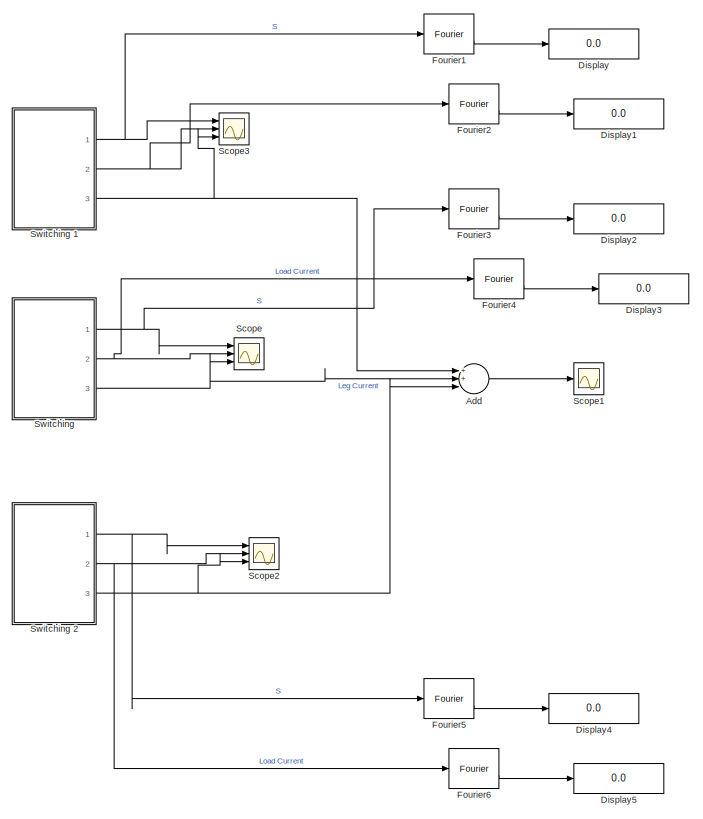
[diagram: root canvas - part 1/2, left side, full height]
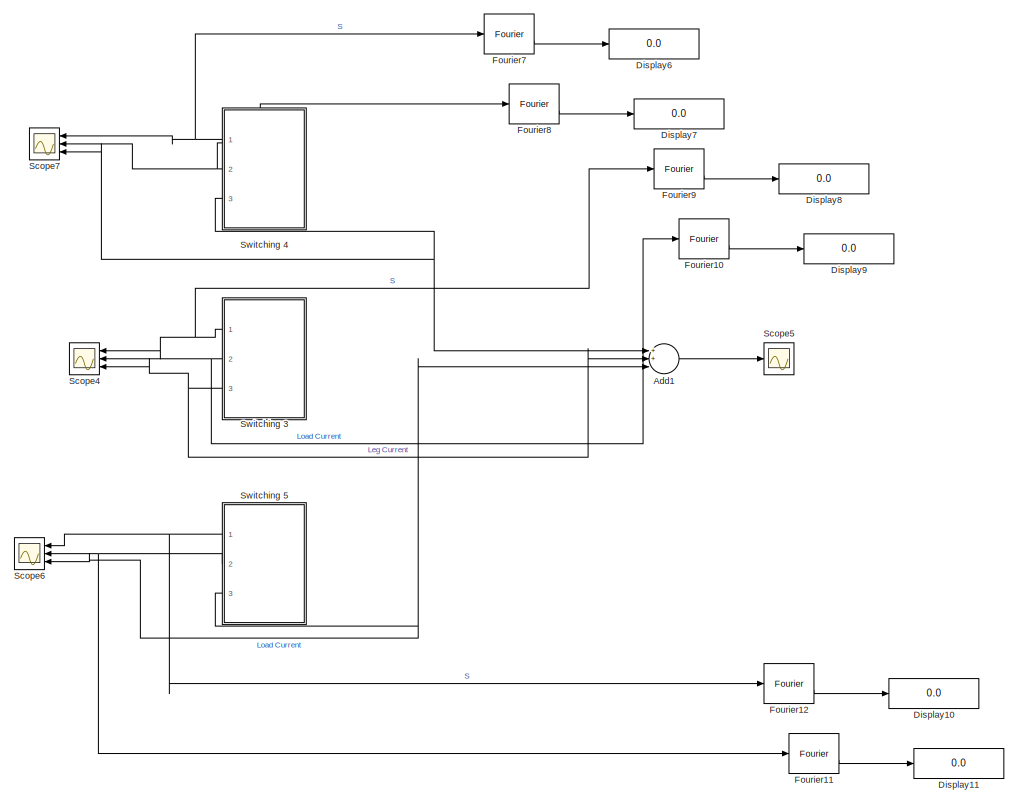
[diagram: root canvas - part 2/2, right side, full height]
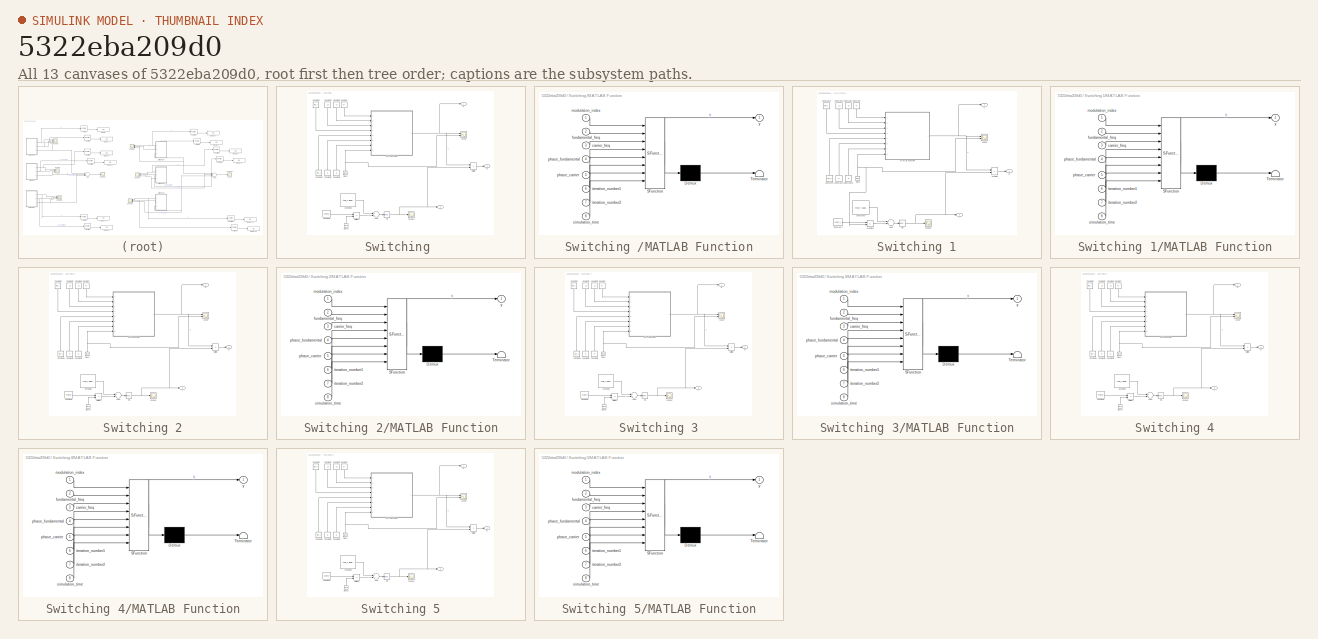
[diagram: thumbnail index - all 13 canvases of the model, root first then tree order]
MODEL slx_5322eba209d0
KIND model
CONFIG AbsTol = auto
CONFIG EnableMultiTasking = off
CONFIG FixedStep = 2.5e-6
CONFIG MaxStep = auto
CONFIG MinStep = auto
CONFIG RelTol = 1e-3
CONFIG SampleTimeConstraint = Unconstrained
CONFIG Solver = FixedStepAuto
CONFIG SolverName = FixedStepAuto
CONFIG StartTime = 0.0
CONFIG StopTime = 0.04
BLOCK [Sum] Add
  InputSameDT = off
  Inputs = 3
  OutDataTypeStr = Inherit: Inherit via internal rule
  Ports = [3, 1]
  SaturateOnIntegerOverflow = off
BLOCK [Sum] Add1
  InputSameDT = off
  Inputs = 3
  OutDataTypeStr = Inherit: Inherit via internal rule
  Ports = [3, 1]
  SaturateOnIntegerOverflow = off
BLOCK [Display] Display
  Decimation = 1
  Ports = [1]
BLOCK [Display] Display1
  Decimation = 1
  Ports = [1]
BLOCK [Display] Display10
  Decimation = 1
  Ports = [1]
BLOCK [Display] Display11
  Decimation = 1
  Ports = [1]
BLOCK [Display] Display2
  Decimation = 1
  Ports = [1]
BLOCK [Display] Display3
  Decimation = 1
  Ports = [1]
BLOCK [Display] Display4
  Decimation = 1
  Ports = [1]
BLOCK [Display] Display5
  Decimation = 1
  Ports = [1]
BLOCK [Display] Display6
  Decimation = 1
  Ports = [1]
BLOCK [Display] Display7
  Decimation = 1
  Ports = [1]
BLOCK [Display] Display8
  Decimation = 1
  Ports = [1]
BLOCK [Display] Display9
  Decimation = 1
  Ports = [1]
BLOCK [Reference] Fourier1  REF=powerlib_meascontrol/Measurements/Fourier
  Ports = [1, 2]
  SourceBlock = powerlib_meascontrol/Measurements/Fourier
  SourceProductBaseCode = PS
  SourceProductName = Simscape Power Systems
  SourceType = Fourier
BLOCK [Reference] Fourier10  REF=powerlib_meascontrol/Measurements/Fourier
  Ports = [1, 2]
  SourceBlock = powerlib_meascontrol/Measurements/Fourier
  SourceProductBaseCode = PS
  SourceProductName = Simscape Power Systems
  SourceType = Fourier
BLOCK [Reference] Fourier11  REF=powerlib_meascontrol/Measurements/Fourier
  Ports = [1, 2]
  SourceBlock = powerlib_meascontrol/Measurements/Fourier
  SourceProductBaseCode = PS
  SourceProductName = Simscape Power Systems
  SourceType = Fourier
BLOCK [Reference] Fourier12  REF=powerlib_meascontrol/Measurements/Fourier
  Ports = [1, 2]
  SourceBlock = powerlib_meascontrol/Measurements/Fourier
  SourceProductBaseCode = PS
  SourceProductName = Simscape Power Systems
  SourceType = Fourier
BLOCK [Reference] Fourier2  REF=powerlib_meascontrol/Measurements/Fourier
  Ports = [1, 2]
  SourceBlock = powerlib_meascontrol/Measurements/Fourier
  SourceProductBaseCode = PS
  SourceProductName = Simscape Power Systems
  SourceType = Fourier
BLOCK [Reference] Fourier3  REF=powerlib_meascontrol/Measurements/Fourier
  Ports = [1, 2]
  SourceBlock = powerlib_meascontrol/Measurements/Fourier
  SourceProductBaseCode = PS
  SourceProductName = Simscape Power Systems
  SourceType = Fourier
BLOCK [Reference] Fourier4  REF=powerlib_meascontrol/Measurements/Fourier
  Ports = [1, 2]
  SourceBlock = powerlib_meascontrol/Measurements/Fourier
  SourceProductBaseCode = PS
  SourceProductName = Simscape Power Systems
  SourceType = Fourier
BLOCK [Reference] Fourier5  REF=powerlib_meascontrol/Measurements/Fourier
  Ports = [1, 2]
  SourceBlock = powerlib_meascontrol/Measurements/Fourier
  SourceProductBaseCode = PS
  SourceProductName = Simscape Power Systems
  SourceType = Fourier
BLOCK [Reference] Fourier6  REF=powerlib_meascontrol/Measurements/Fourier
  Ports = [1, 2]
  SourceBlock = powerlib_meascontrol/Measurements/Fourier
  SourceProductBaseCode = PS
  SourceProductName = Simscape Power Systems
  SourceType = Fourier
BLOCK [Reference] Fourier7  REF=powerlib_meascontrol/Measurements/Fourier
  Ports = [1, 2]
  SourceBlock = powerlib_meascontrol/Measurements/Fourier
  SourceProductBaseCode = PS
  SourceProductName = Simscape Power Systems
  SourceType = Fourier
BLOCK [Reference] Fourier8  REF=powerlib_meascontrol/Measurements/Fourier
  Ports = [1, 2]
  SourceBlock = powerlib_meascontrol/Measurements/Fourier
  SourceProductBaseCode = PS
  SourceProductName = Simscape Power Systems
  SourceType = Fourier
BLOCK [Reference] Fourier9  REF=powerlib_meascontrol/Measurements/Fourier
  Ports = [1, 2]
  SourceBlock = powerlib_meascontrol/Measurements/Fourier
  SourceProductBaseCode = PS
  SourceProductName = Simscape Power Systems
  SourceType = Fourier
BLOCK [Scope] Scope
  Floating = off
  NumInputPorts = 3
  Ports = [3]
  ScopeSpecificationString = Simulink.scopes.TimeScopeBlockCfg('CurrentConfiguration', extmgr.ConfigurationSet(extmgr.Configuration('Core','General UI',true),extmgr.Configuration('Core','Source UI',true),extmgr.Configuration('Sources','WiredSimulink',true,'DataLoggingVariableName','ScopeData2'),extmgr.Configuration('Visuals','Time Domain',true,'SerializedDisplays',{struct('MinYLimReal','-0.25175','MaxYLimReal','1.25195','YLab...<+2741ch>
BLOCK [Scope] Scope1
  Floating = off
  NumInputPorts = 1
  Ports = [1]
  ScopeSpecificationString = Simulink.scopes.TimeScopeBlockCfg('CurrentConfiguration', extmgr.ConfigurationSet(extmgr.Configuration('Core','General UI',true),extmgr.Configuration('Core','Source UI',true),extmgr.Configuration('Sources','WiredSimulink',true,'DataLoggingVariableName','Module1','DataLogging',true),extmgr.Configuration('Visuals','Time Domain',true,'SerializedDisplays',{struct('MinYLimReal','-0.22263','MaxYLimReal'...<+1454ch>
BLOCK [Scope] Scope2
  Floating = off
  NumInputPorts = 3
  Ports = [3]
  ScopeSpecificationString = Simulink.scopes.TimeScopeBlockCfg('CurrentConfiguration', extmgr.ConfigurationSet(extmgr.Configuration('Core','General UI',true),extmgr.Configuration('Core','Source UI',true),extmgr.Configuration('Sources','WiredSimulink',true,'DataLoggingVariableName','ScopeData4'),extmgr.Configuration('Visuals','Time Domain',true,'SerializedDisplays',{struct('MinYLimReal','-0.25652','MaxYLimReal','1.34172','YLab...<+2760ch>
BLOCK [Scope] Scope3
  Floating = off
  NumInputPorts = 3
  Ports = [3]
  ScopeSpecificationString = Simulink.scopes.TimeScopeBlockCfg('CurrentConfiguration', extmgr.ConfigurationSet(extmgr.Configuration('Core','General UI',true),extmgr.Configuration('Core','Source UI',true),extmgr.Configuration('Sources','WiredSimulink',true,'DataLoggingVariableName','ScopeData5'),extmgr.Configuration('Visuals','Time Domain',true,'SerializedDisplays',{struct('MinYLimReal','-0.25187','MaxYLimReal','1.25118','YLab...<+2750ch>
BLOCK [Scope] Scope4
  Floating = off
  NumInputPorts = 3
  Ports = [3]
  ScopeSpecificationString = Simulink.scopes.TimeScopeBlockCfg('CurrentConfiguration', extmgr.ConfigurationSet(extmgr.Configuration('Core','General UI',true),extmgr.Configuration('Core','Source UI',true),extmgr.Configuration('Sources','WiredSimulink',true,'DataLoggingVariableName','ScopeData6'),extmgr.Configuration('Visuals','Time Domain',true,'SerializedDisplays',{struct('MinYLimReal','-0.25175','MaxYLimReal','1.25195','YLab...<+2758ch>
BLOCK [Scope] Scope5
  Floating = off
  NumInputPorts = 1
  Ports = [1]
  ScopeSpecificationString = Simulink.scopes.TimeScopeBlockCfg('CurrentConfiguration', extmgr.ConfigurationSet(extmgr.Configuration('Core','General UI',true),extmgr.Configuration('Core','Source UI',true),extmgr.Configuration('Sources','WiredSimulink',true,'DataLoggingVariableName','Module2','DataLogging',true),extmgr.Configuration('Visuals','Time Domain',true,'SerializedDisplays',{struct('MinYLimReal','-0.49524','MaxYLimReal'...<+1455ch>
BLOCK [Scope] Scope6
  Floating = off
  NumInputPorts = 3
  Ports = [3]
  ScopeSpecificationString = Simulink.scopes.TimeScopeBlockCfg('CurrentConfiguration', extmgr.ConfigurationSet(extmgr.Configuration('Core','General UI',true),extmgr.Configuration('Core','Source UI',true),extmgr.Configuration('Sources','WiredSimulink',true,'DataLoggingVariableName','ScopeData8'),extmgr.Configuration('Visuals','Time Domain',true,'SerializedDisplays',{struct('MinYLimReal','-0.25652','MaxYLimReal','1.34172','YLab...<+2760ch>
BLOCK [Scope] Scope7
  Floating = off
  NumInputPorts = 3
  Ports = [3]
  ScopeSpecificationString = Simulink.scopes.TimeScopeBlockCfg('CurrentConfiguration', extmgr.ConfigurationSet(extmgr.Configuration('Core','General UI',true),extmgr.Configuration('Core','Source UI',true),extmgr.Configuration('Sources','WiredSimulink',true,'DataLoggingVariableName','ScopeData9'),extmgr.Configuration('Visuals','Time Domain',true,'SerializedDisplays',{struct('MinYLimReal','-0.25187','MaxYLimReal','1.25118','YLab...<+2755ch>
BLOCK [SubSystem] Switching 
  Ports = [0, 3]
  RequestExecContextInheritance = off
BLOCK [Sum] Switching /Add2
  InputSameDT = off
  OutDataTypeStr = Inherit: Inherit via internal rule
  Ports = [2, 1]
  SaturateOnIntegerOverflow = off
BLOCK [Clock] Switching /Clock
  Decimation = 1
  DisplayTime = on
BLOCK [Clock] Switching /Clock2
BLOCK [Constant] Switching /Constant
  Value = m
BLOCK [Constant] Switching /Constant1
  Value = f_f
BLOCK [Constant] Switching /Constant2
  Value = f_s
BLOCK [Constant] Switching /Constant3
  Value = the_f
BLOCK [Constant] Switching /Constant4
  Value = the_c
BLOCK [Constant] Switching /Constant5
  Value = i1
BLOCK [Constant] Switching /Constant6
  Value = i2
BLOCK [Constant] Switching /Constant7
  Value = 2*pi*f_f
BLOCK [Constant] Switching /Constant8
  Value = -the_f-load_phase
  VectorParams1D = off
BLOCK [Outport] Switching /I 
  IconDisplay = Port number
  Port = 2
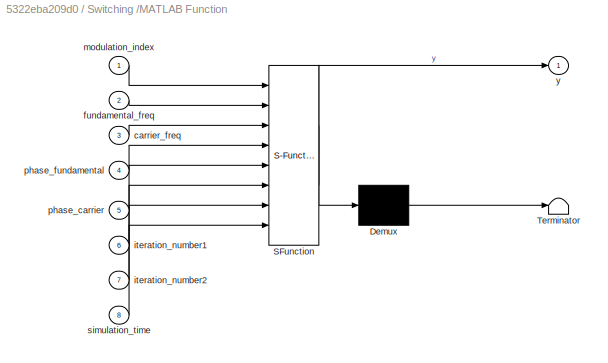
BLOCK [SubSystem] Switching /MATLAB Function
  ErrorFcn = Stateflow.Translate.translate
  PermitHierarchicalResolution = ExplicitOnly
  Ports = [8, 1]
  RequestExecContextInheritance = off
  SFBlockType = MATLAB Function
  TreatAsAtomicUnit = on
BLOCK [Demux] Switching /MATLAB Function/ Demux 
  Outputs = 1
  Ports = [1, 1]
BLOCK [S-Function] Switching /MATLAB Function/ SFunction 
  EnableBusSupport = on
  FunctionName = sf_sfun
  PortCounts = [8 2]
  Ports = [8, 2]
  SFcnIsStateOwnerBlock = off
  SFunctionDeploymentMode = off
  Tag = Stateflow S-Function switching_leg 4
BLOCK [Terminator] Switching /MATLAB Function/ Terminator 
BLOCK [Inport] Switching /MATLAB Function/carrier_freq
  IconDisplay = Port number
  Port = 3
BLOCK [Inport] Switching /MATLAB Function/fundamental_freq
  IconDisplay = Port number
  Port = 2
BLOCK [Inport] Switching /MATLAB Function/iteration_number1
  IconDisplay = Port number
  Port = 6
BLOCK [Inport] Switching /MATLAB Function/iteration_number2
  IconDisplay = Port number
  Port = 7
BLOCK [Inport] Switching /MATLAB Function/modulation_index
  IconDisplay = Port number
BLOCK [Inport] Switching /MATLAB Function/phase_carrier
  IconDisplay = Port number
  Port = 5
BLOCK [Inport] Switching /MATLAB Function/phase_fundamental
  IconDisplay = Port number
  Port = 4
BLOCK [Inport] Switching /MATLAB Function/simulation_time
  IconDisplay = Port number
  Port = 8
BLOCK [Outport] Switching /MATLAB Function/y
  IconDisplay = Port number
BLOCK [Product] Switching /Multiply
  InputSameDT = off
  OutDataTypeStr = Inherit: Inherit via internal rule
  Ports = [2, 1]
  RndMeth = Floor
  SaturateOnIntegerOverflow = off
BLOCK [Product] Switching /Multiply2
  InputSameDT = off
  OutDataTypeStr = Inherit: Inherit via internal rule
  Ports = [2, 1]
  RndMeth = Floor
  SaturateOnIntegerOverflow = off
BLOCK [Outport] Switching /S
  IconDisplay = Port number
BLOCK [Outport] Switching /SI
  IconDisplay = Port number
  Port = 3
BLOCK [Scope] Switching /Scope
  Floating = off
  NumInputPorts = 2
  Ports = [2]
  ScopeSpecificationString = Simulink.scopes.TimeScopeBlockCfg('CurrentConfiguration', extmgr.ConfigurationSet(extmgr.Configuration('Core','General UI',true),extmgr.Configuration('Core','Source UI',true),extmgr.Configuration('Sources','WiredSimulink',true),extmgr.Configuration('Visuals','Time Domain',true,'SerializedDisplays',{struct('MinYLimReal','-0.23876','MaxYLimReal','1.24537','YLabelReal','','MinYLimMag','0.00000','MaxY...<+1421ch>  <repeated x5 — deduplicated; at blocks: Scope>
BLOCK [Scope] Switching /Scope2
  Floating = off
  NumInputPorts = 1
  Ports = [1]
  ScopeSpecificationString = Simulink.scopes.TimeScopeBlockCfg('CurrentConfiguration', extmgr.ConfigurationSet(extmgr.Configuration('Core','General UI',true),extmgr.Configuration('Core','Source UI',true),extmgr.Configuration('Sources','WiredSimulink',true,'DataLoggingVariableName','ScopeData1'),extmgr.Configuration('Visuals','Time Domain',true,'SerializedDisplays',{struct('MinYLimReal','-1.25','MaxYLimReal','1.25','YLabelReal...<+1376ch>  <repeated x6 — deduplicated; at blocks: Scope2>
BLOCK [Trigonometry] Switching /Sin
  Ports = [1, 1]
BLOCK [SubSystem] Switching 1
  Ports = [0, 3]
  RequestExecContextInheritance = off
BLOCK [Sum] Switching 1/Add2
  InputSameDT = off
  OutDataTypeStr = Inherit: Inherit via internal rule
  Ports = [2, 1]
  SaturateOnIntegerOverflow = off
BLOCK [Clock] Switching 1/Clock
  Decimation = 1
  DisplayTime = on
BLOCK [Constant] Switching 1/Constant
  Value = m
BLOCK [Constant] Switching 1/Constant1
  Value = f_f
BLOCK [Constant] Switching 1/Constant2
  Value = f_s
BLOCK [Constant] Switching 1/Constant3
  Value = the_f
BLOCK [Constant] Switching 1/Constant4
  Value = the_c
BLOCK [Constant] Switching 1/Constant5
  Value = i1
BLOCK [Constant] Switching 1/Constant6
  Value = i2
BLOCK [Constant] Switching 1/Constant7
  Value = 2*pi*f_f
BLOCK [Constant] Switching 1/Constant8
  Value = -the_f-load_phase
  VectorParams1D = off
BLOCK [Outport] Switching 1/I 
  IconDisplay = Port number
  Port = 2
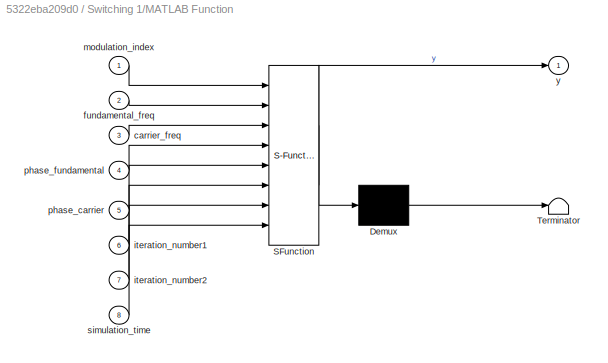
BLOCK [SubSystem] Switching 1/MATLAB Function
  ErrorFcn = Stateflow.Translate.translate
  PermitHierarchicalResolution = ExplicitOnly
  Ports = [8, 1]
  RequestExecContextInheritance = off
  SFBlockType = MATLAB Function
  TreatAsAtomicUnit = on
BLOCK [Demux] Switching 1/MATLAB Function/ Demux 
  Outputs = 1
  Ports = [1, 1]
BLOCK [S-Function] Switching 1/MATLAB Function/ SFunction 
  EnableBusSupport = on
  FunctionName = sf_sfun
  PortCounts = [8 2]
  Ports = [8, 2]
  SFcnIsStateOwnerBlock = off
  SFunctionDeploymentMode = off
  Tag = Stateflow S-Function switching_leg 1
BLOCK [Terminator] Switching 1/MATLAB Function/ Terminator 
BLOCK [Inport] Switching 1/MATLAB Function/carrier_freq
  IconDisplay = Port number
  Port = 3
BLOCK [Inport] Switching 1/MATLAB Function/fundamental_freq
  IconDisplay = Port number
  Port = 2
BLOCK [Inport] Switching 1/MATLAB Function/iteration_number1
  IconDisplay = Port number
  Port = 6
BLOCK [Inport] Switching 1/MATLAB Function/iteration_number2
  IconDisplay = Port number
  Port = 7
BLOCK [Inport] Switching 1/MATLAB Function/modulation_index
  IconDisplay = Port number
BLOCK [Inport] Switching 1/MATLAB Function/phase_carrier
  IconDisplay = Port number
  Port = 5
BLOCK [Inport] Switching 1/MATLAB Function/phase_fundamental
  IconDisplay = Port number
  Port = 4
BLOCK [Inport] Switching 1/MATLAB Function/simulation_time
  IconDisplay = Port number
  Port = 8
BLOCK [Outport] Switching 1/MATLAB Function/y
  IconDisplay = Port number
BLOCK [Product] Switching 1/Multiply
  InputSameDT = off
  OutDataTypeStr = Inherit: Inherit via internal rule
  Ports = [2, 1]
  RndMeth = Floor
  SaturateOnIntegerOverflow = off
BLOCK [Product] Switching 1/Multiply2
  InputSameDT = off
  OutDataTypeStr = Inherit: Inherit via internal rule
  Ports = [2, 1]
  RndMeth = Floor
  SaturateOnIntegerOverflow = off
BLOCK [Outport] Switching 1/S
  IconDisplay = Port number
BLOCK [Outport] Switching 1/SI
  IconDisplay = Port number
  Port = 3
BLOCK [Scope] Switching 1/Scope
  Floating = off
  NumInputPorts = 2
  Ports = [2]
  ScopeSpecificationString = Simulink.scopes.TimeScopeBlockCfg('CurrentConfiguration', extmgr.ConfigurationSet(extmgr.Configuration('Core','General UI',true),extmgr.Configuration('Core','Source UI',true),extmgr.Configuration('Sources','WiredSimulink',true),extmgr.Configuration('Visuals','Time Domain',true,'SerializedDisplays',{struct('MinYLimReal','-0.25187','MaxYLimReal','1.25118','YLabelReal','','MinYLimMag','0.00000','MaxY...<+1407ch>
BLOCK [Scope] Switching 1/Scope2
  Floating = off
  NumInputPorts = 1
  Ports = [1]
BLOCK [Trigonometry] Switching 1/Sin
  Ports = [1, 1]
BLOCK [SubSystem] Switching 2
  Ports = [0, 3]
  RequestExecContextInheritance = off
BLOCK [Sum] Switching 2/Add2
  InputSameDT = off
  OutDataTypeStr = Inherit: Inherit via internal rule
  Ports = [2, 1]
  SaturateOnIntegerOverflow = off
BLOCK [Clock] Switching 2/Clock
  Decimation = 1
  DisplayTime = on
BLOCK [Clock] Switching 2/Clock2
BLOCK [Constant] Switching 2/Constant
  Value = m
BLOCK [Constant] Switching 2/Constant1
  Value = f_f
BLOCK [Constant] Switching 2/Constant2
  Value = f_s
BLOCK [Constant] Switching 2/Constant3
  Value = the_f
BLOCK [Constant] Switching 2/Constant4
  Value = the_c
BLOCK [Constant] Switching 2/Constant5
  Value = i1
BLOCK [Constant] Switching 2/Constant6
  Value = i2
BLOCK [Constant] Switching 2/Constant7
  Value = 2*pi*f_f
BLOCK [Constant] Switching 2/Constant8
  Value = -the_f-load_phase
  VectorParams1D = off
BLOCK [Outport] Switching 2/I 
  IconDisplay = Port number
  Port = 2
BLOCK [SubSystem] Switching 2/MATLAB Function
  ErrorFcn = Stateflow.Translate.translate
  PermitHierarchicalResolution = ExplicitOnly
  Ports = [8, 1]
  RequestExecContextInheritance = off
  SFBlockType = MATLAB Function
  TreatAsAtomicUnit = on
BLOCK [Demux] Switching 2/MATLAB Function/ Demux 
  Outputs = 1
  Ports = [1, 1]
BLOCK [S-Function] Switching 2/MATLAB Function/ SFunction 
  EnableBusSupport = on
  FunctionName = sf_sfun
  PortCounts = [8 2]
  Ports = [8, 2]
  SFcnIsStateOwnerBlock = off
  SFunctionDeploymentMode = off
  Tag = Stateflow S-Function switching_leg 2
BLOCK [Terminator] Switching 2/MATLAB Function/ Terminator 
BLOCK [Inport] Switching 2/MATLAB Function/carrier_freq
  IconDisplay = Port number
  Port = 3
BLOCK [Inport] Switching 2/MATLAB Function/fundamental_freq
  IconDisplay = Port number
  Port = 2
BLOCK [Inport] Switching 2/MATLAB Function/iteration_number1
  IconDisplay = Port number
  Port = 6
BLOCK [Inport] Switching 2/MATLAB Function/iteration_number2
  IconDisplay = Port number
  Port = 7
BLOCK [Inport] Switching 2/MATLAB Function/modulation_index
  IconDisplay = Port number
BLOCK [Inport] Switching 2/MATLAB Function/phase_carrier
  IconDisplay = Port number
  Port = 5
BLOCK [Inport] Switching 2/MATLAB Function/phase_fundamental
  IconDisplay = Port number
  Port = 4
BLOCK [Inport] Switching 2/MATLAB Function/simulation_time
  IconDisplay = Port number
  Port = 8
BLOCK [Outport] Switching 2/MATLAB Function/y
  IconDisplay = Port number
BLOCK [Product] Switching 2/Multiply
  InputSameDT = off
  OutDataTypeStr = Inherit: Inherit via internal rule
  Ports = [2, 1]
  RndMeth = Floor
  SaturateOnIntegerOverflow = off
BLOCK [Product] Switching 2/Multiply2
  InputSameDT = off
  OutDataTypeStr = Inherit: Inherit via internal rule
  Ports = [2, 1]
  RndMeth = Floor
  SaturateOnIntegerOverflow = off
BLOCK [Outport] Switching 2/S
  IconDisplay = Port number
BLOCK [Outport] Switching 2/SI
  IconDisplay = Port number
  Port = 3
BLOCK [Scope] Switching 2/Scope
  Floating = off
  NumInputPorts = 2
  Ports = [2]
BLOCK [Scope] Switching 2/Scope2
  Floating = off
  NumInputPorts = 1
  Ports = [1]
BLOCK [Trigonometry] Switching 2/Sin
  Ports = [1, 1]
BLOCK [SubSystem] Switching 3
  Ports = [0, 3]
  RequestExecContextInheritance = off
BLOCK [Sum] Switching 3/Add2
  InputSameDT = off
  OutDataTypeStr = Inherit: Inherit via internal rule
  Ports = [2, 1]
  SaturateOnIntegerOverflow = off
BLOCK [Clock] Switching 3/Clock
  Decimation = 1
  DisplayTime = on
BLOCK [Clock] Switching 3/Clock2
BLOCK [Constant] Switching 3/Constant
  Value = m
BLOCK [Constant] Switching 3/Constant1
  Value = f_f
BLOCK [Constant] Switching 3/Constant2
  Value = f_s
BLOCK [Constant] Switching 3/Constant3
  Value = the_f
BLOCK [Constant] Switching 3/Constant4
  Value = the_c
BLOCK [Constant] Switching 3/Constant5
  Value = i1
BLOCK [Constant] Switching 3/Constant6
  Value = i2
BLOCK [Constant] Switching 3/Constant7
  Value = 2*pi*f_f
BLOCK [Constant] Switching 3/Constant8
  Value = -the_f-load_phase
BLOCK [Outport] Switching 3/I 
  IconDisplay = Port number
  Port = 2
BLOCK [SubSystem] Switching 3/MATLAB Function
  ErrorFcn = Stateflow.Translate.translate
  PermitHierarchicalResolution = ExplicitOnly
  Ports = [8, 1]
  RequestExecContextInheritance = off
  SFBlockType = MATLAB Function
  TreatAsAtomicUnit = on
BLOCK [Demux] Switching 3/MATLAB Function/ Demux 
  Outputs = 1
  Ports = [1, 1]
BLOCK [S-Function] Switching 3/MATLAB Function/ SFunction 
  EnableBusSupport = on
  FunctionName = sf_sfun
  PortCounts = [8 2]
  Ports = [8, 2]
  SFcnIsStateOwnerBlock = off
  SFunctionDeploymentMode = off
  Tag = Stateflow S-Function switching_leg 3
BLOCK [Terminator] Switching 3/MATLAB Function/ Terminator 
BLOCK [Inport] Switching 3/MATLAB Function/carrier_freq
  IconDisplay = Port number
  Port = 3
BLOCK [Inport] Switching 3/MATLAB Function/fundamental_freq
  IconDisplay = Port number
  Port = 2
BLOCK [Inport] Switching 3/MATLAB Function/iteration_number1
  IconDisplay = Port number
  Port = 6
BLOCK [Inport] Switching 3/MATLAB Function/iteration_number2
  IconDisplay = Port number
  Port = 7
BLOCK [Inport] Switching 3/MATLAB Function/modulation_index
  IconDisplay = Port number
BLOCK [Inport] Switching 3/MATLAB Function/phase_carrier
  IconDisplay = Port number
  Port = 5
BLOCK [Inport] Switching 3/MATLAB Function/phase_fundamental
  IconDisplay = Port number
  Port = 4
BLOCK [Inport] Switching 3/MATLAB Function/simulation_time
  IconDisplay = Port number
  Port = 8
BLOCK [Outport] Switching 3/MATLAB Function/y
  IconDisplay = Port number
BLOCK [Product] Switching 3/Multiply
  InputSameDT = off
  OutDataTypeStr = Inherit: Inherit via internal rule
  Ports = [2, 1]
  RndMeth = Floor
  SaturateOnIntegerOverflow = off
BLOCK [Product] Switching 3/Multiply2
  InputSameDT = off
  OutDataTypeStr = Inherit: Inherit via internal rule
  Ports = [2, 1]
  RndMeth = Floor
  SaturateOnIntegerOverflow = off
BLOCK [Outport] Switching 3/S
  IconDisplay = Port number
BLOCK [Outport] Switching 3/SI
  IconDisplay = Port number
  Port = 3
BLOCK [Scope] Switching 3/Scope
  Floating = off
  NumInputPorts = 2
  Ports = [2]
BLOCK [Scope] Switching 3/Scope2
  Floating = off
  NumInputPorts = 1
  Ports = [1]
BLOCK [Trigonometry] Switching 3/Sin
  Ports = [1, 1]
BLOCK [SubSystem] Switching 4
  Ports = [0, 3]
  RequestExecContextInheritance = off
BLOCK [Sum] Switching 4/Add2
  InputSameDT = off
  OutDataTypeStr = Inherit: Inherit via internal rule
  Ports = [2, 1]
  SaturateOnIntegerOverflow = off
BLOCK [Clock] Switching 4/Clock
  Decimation = 1
  DisplayTime = on
BLOCK [Clock] Switching 4/Clock2
BLOCK [Constant] Switching 4/Constant
  Value = m
BLOCK [Constant] Switching 4/Constant1
  Value = f_f
BLOCK [Constant] Switching 4/Constant2
  Value = f_s
BLOCK [Constant] Switching 4/Constant3
  Value = the_f
BLOCK [Constant] Switching 4/Constant4
  Value = the_c
BLOCK [Constant] Switching 4/Constant5
  Value = i1
BLOCK [Constant] Switching 4/Constant6
  Value = i2
BLOCK [Constant] Switching 4/Constant7
  Value = 2*pi*f_f
BLOCK [Constant] Switching 4/Constant8
  Value = -the_f-load_phase
BLOCK [Outport] Switching 4/I 
  IconDisplay = Port number
  Port = 2
BLOCK [SubSystem] Switching 4/MATLAB Function
  ErrorFcn = Stateflow.Translate.translate
  PermitHierarchicalResolution = ExplicitOnly
  Ports = [8, 1]
  RequestExecContextInheritance = off
  SFBlockType = MATLAB Function
  TreatAsAtomicUnit = on
BLOCK [Demux] Switching 4/MATLAB Function/ Demux 
  Outputs = 1
  Ports = [1, 1]
BLOCK [S-Function] Switching 4/MATLAB Function/ SFunction 
  EnableBusSupport = on
  FunctionName = sf_sfun
  PortCounts = [8 2]
  Ports = [8, 2]
  SFcnIsStateOwnerBlock = off
  SFunctionDeploymentMode = off
  Tag = Stateflow S-Function switching_leg 5
BLOCK [Terminator] Switching 4/MATLAB Function/ Terminator 
BLOCK [Inport] Switching 4/MATLAB Function/carrier_freq
  IconDisplay = Port number
  Port = 3
BLOCK [Inport] Switching 4/MATLAB Function/fundamental_freq
  IconDisplay = Port number
  Port = 2
BLOCK [Inport] Switching 4/MATLAB Function/iteration_number1
  IconDisplay = Port number
  Port = 6
BLOCK [Inport] Switching 4/MATLAB Function/iteration_number2
  IconDisplay = Port number
  Port = 7
BLOCK [Inport] Switching 4/MATLAB Function/modulation_index
  IconDisplay = Port number
BLOCK [Inport] Switching 4/MATLAB Function/phase_carrier
  IconDisplay = Port number
  Port = 5
BLOCK [Inport] Switching 4/MATLAB Function/phase_fundamental
  IconDisplay = Port number
  Port = 4
BLOCK [Inport] Switching 4/MATLAB Function/simulation_time
  IconDisplay = Port number
  Port = 8
BLOCK [Outport] Switching 4/MATLAB Function/y
  IconDisplay = Port number
BLOCK [Product] Switching 4/Multiply
  InputSameDT = off
  OutDataTypeStr = Inherit: Inherit via internal rule
  Ports = [2, 1]
  RndMeth = Floor
  SaturateOnIntegerOverflow = off
BLOCK [Product] Switching 4/Multiply2
  InputSameDT = off
  OutDataTypeStr = Inherit: Inherit via internal rule
  Ports = [2, 1]
  RndMeth = Floor
  SaturateOnIntegerOverflow = off
BLOCK [Outport] Switching 4/S
  IconDisplay = Port number
BLOCK [Outport] Switching 4/SI
  IconDisplay = Port number
  Port = 3
BLOCK [Scope] Switching 4/Scope
  Floating = off
  NumInputPorts = 2
  Ports = [2]
BLOCK [Scope] Switching 4/Scope2
  Floating = off
  NumInputPorts = 1
  Ports = [1]
BLOCK [Trigonometry] Switching 4/Sin
  Ports = [1, 1]
BLOCK [SubSystem] Switching 5
  Ports = [0, 3]
  RequestExecContextInheritance = off
BLOCK [Sum] Switching 5/Add2
  InputSameDT = off
  OutDataTypeStr = Inherit: Inherit via internal rule
  Ports = [2, 1]
  SaturateOnIntegerOverflow = off
BLOCK [Clock] Switching 5/Clock
  Decimation = 1
  DisplayTime = on
BLOCK [Clock] Switching 5/Clock2
BLOCK [Constant] Switching 5/Constant
  Value = m
BLOCK [Constant] Switching 5/Constant1
  Value = f_f
BLOCK [Constant] Switching 5/Constant2
  Value = f_s
BLOCK [Constant] Switching 5/Constant3
  Value = the_f
BLOCK [Constant] Switching 5/Constant4
  Value = the_c
BLOCK [Constant] Switching 5/Constant5
  Value = i1
BLOCK [Constant] Switching 5/Constant6
  Value = i2
BLOCK [Constant] Switching 5/Constant7
  Value = 2*pi*f_f
BLOCK [Constant] Switching 5/Constant8
  Value = -the_f-load_phase
BLOCK [Outport] Switching 5/I 
  IconDisplay = Port number
  Port = 2
BLOCK [SubSystem] Switching 5/MATLAB Function
  ErrorFcn = Stateflow.Translate.translate
  PermitHierarchicalResolution = ExplicitOnly
  Ports = [8, 1]
  RequestExecContextInheritance = off
  SFBlockType = MATLAB Function
  TreatAsAtomicUnit = on
BLOCK [Demux] Switching 5/MATLAB Function/ Demux 
  Outputs = 1
  Ports = [1, 1]
BLOCK [S-Function] Switching 5/MATLAB Function/ SFunction 
  EnableBusSupport = on
  FunctionName = sf_sfun
  PortCounts = [8 2]
  Ports = [8, 2]
  SFcnIsStateOwnerBlock = off
  SFunctionDeploymentMode = off
  Tag = Stateflow S-Function switching_leg 6
BLOCK [Terminator] Switching 5/MATLAB Function/ Terminator 
BLOCK [Inport] Switching 5/MATLAB Function/carrier_freq
  IconDisplay = Port number
  Port = 3
BLOCK [Inport] Switching 5/MATLAB Function/fundamental_freq
  IconDisplay = Port number
  Port = 2
BLOCK [Inport] Switching 5/MATLAB Function/iteration_number1
  IconDisplay = Port number
  Port = 6
BLOCK [Inport] Switching 5/MATLAB Function/iteration_number2
  IconDisplay = Port number
  Port = 7
BLOCK [Inport] Switching 5/MATLAB Function/modulation_index
  IconDisplay = Port number
BLOCK [Inport] Switching 5/MATLAB Function/phase_carrier
  IconDisplay = Port number
  Port = 5
BLOCK [Inport] Switching 5/MATLAB Function/phase_fundamental
  IconDisplay = Port number
  Port = 4
BLOCK [Inport] Switching 5/MATLAB Function/simulation_time
  IconDisplay = Port number
  Port = 8
BLOCK [Outport] Switching 5/MATLAB Function/y
  IconDisplay = Port number
BLOCK [Product] Switching 5/Multiply
  InputSameDT = off
  OutDataTypeStr = Inherit: Inherit via internal rule
  Ports = [2, 1]
  RndMeth = Floor
  SaturateOnIntegerOverflow = off
BLOCK [Product] Switching 5/Multiply2
  InputSameDT = off
  OutDataTypeStr = Inherit: Inherit via internal rule
  Ports = [2, 1]
  RndMeth = Floor
  SaturateOnIntegerOverflow = off
BLOCK [Outport] Switching 5/S
  IconDisplay = Port number
BLOCK [Outport] Switching 5/SI
  IconDisplay = Port number
  Port = 3
BLOCK [Scope] Switching 5/Scope
  Floating = off
  NumInputPorts = 2
  Ports = [2]
BLOCK [Scope] Switching 5/Scope2
  Floating = off
  NumInputPorts = 1
  Ports = [1]
BLOCK [Trigonometry] Switching 5/Sin
  Ports = [1, 1]
LINE Add1:1 -> Scope5:1
LINE Add:1 -> Scope1:1
LINE Fourier10:2 -> Display9:1
LINE Fourier11:2 -> Display11:1
LINE Fourier12:2 -> Display10:1
LINE Fourier1:2 -> Display:1
LINE Fourier2:2 -> Display1:1
LINE Fourier3:2 -> Display2:1
LINE Fourier4:2 -> Display3:1
LINE Fourier5:2 -> Display4:1
LINE Fourier6:2 -> Display5:1
LINE Fourier7:2 -> Display6:1
LINE Fourier8:2 -> Display7:1
LINE Fourier9:2 -> Display8:1
LINE Switching /Add2:1 -> Switching /Sin:1
LINE Switching /Clock2:1 -> Switching /Multiply2:2
NET Switching /Clock:1 -> Switching /MATLAB Function:8, Switching /Scope:2
LINE Switching /Constant1:1 -> Switching /MATLAB Function:2
LINE Switching /Constant2:1 -> Switching /MATLAB Function:3
LINE Switching /Constant3:1 -> Switching /MATLAB Function:4
LINE Switching /Constant4:1 -> Switching /MATLAB Function:5
LINE Switching /Constant5:1 -> Switching /MATLAB Function:6
LINE Switching /Constant6:1 -> Switching /MATLAB Function:7
LINE Switching /Constant7:1 -> Switching /Multiply2:1
LINE Switching /Constant8:1 -> Switching /Add2:1
LINE Switching /Constant:1 -> Switching /MATLAB Function:1
NET Switching /MATLAB Function:1 -> Switching /Multiply:1, Switching /S:1, Switching /Scope:1
LINE Switching /Multiply2:1 -> Switching /Add2:2
LINE Switching /Multiply:1 -> Switching /SI:1
NET Switching /Sin:1 -> Switching /I :1, Switching /Multiply:2, Switching /Scope2:1
LINE Switching 1/Add2:1 -> Switching 1/Sin:1
NET Switching 1/Clock:1 -> Switching 1/MATLAB Function:8, Switching 1/Multiply2:2, Switching 1/Scope:2
LINE Switching 1/Constant1:1 -> Switching 1/MATLAB Function:2
LINE Switching 1/Constant2:1 -> Switching 1/MATLAB Function:3
LINE Switching 1/Constant3:1 -> Switching 1/MATLAB Function:4
LINE Switching 1/Constant4:1 -> Switching 1/MATLAB Function:5
LINE Switching 1/Constant5:1 -> Switching 1/MATLAB Function:6
LINE Switching 1/Constant6:1 -> Switching 1/MATLAB Function:7
LINE Switching 1/Constant7:1 -> Switching 1/Multiply2:1
LINE Switching 1/Constant8:1 -> Switching 1/Add2:1
LINE Switching 1/Constant:1 -> Switching 1/MATLAB Function:1
NET Switching 1/MATLAB Function:1 -> Switching 1/Multiply:1, Switching 1/S:1, Switching 1/Scope:1
LINE Switching 1/Multiply2:1 -> Switching 1/Add2:2
LINE Switching 1/Multiply:1 -> Switching 1/SI:1
NET Switching 1/Sin:1 -> Switching 1/I :1, Switching 1/Multiply:2, Switching 1/Scope2:1
NET Switching 1:1 -> Fourier1:1, Scope3:1
NET Switching 1:2 -> Fourier2:1, Scope3:2
NET Switching 1:3 -> Add:1, Scope3:3
LINE Switching 2/Add2:1 -> Switching 2/Sin:1
LINE Switching 2/Clock2:1 -> Switching 2/Multiply2:2
NET Switching 2/Clock:1 -> Switching 2/MATLAB Function:8, Switching 2/Scope:2
LINE Switching 2/Constant1:1 -> Switching 2/MATLAB Function:2
LINE Switching 2/Constant2:1 -> Switching 2/MATLAB Function:3
LINE Switching 2/Constant3:1 -> Switching 2/MATLAB Function:4
LINE Switching 2/Constant4:1 -> Switching 2/MATLAB Function:5
LINE Switching 2/Constant5:1 -> Switching 2/MATLAB Function:6
LINE Switching 2/Constant6:1 -> Switching 2/MATLAB Function:7
LINE Switching 2/Constant7:1 -> Switching 2/Multiply2:1
LINE Switching 2/Constant8:1 -> Switching 2/Add2:1
LINE Switching 2/Constant:1 -> Switching 2/MATLAB Function:1
NET Switching 2/MATLAB Function:1 -> Switching 2/Multiply:1, Switching 2/S:1, Switching 2/Scope:1
LINE Switching 2/Multiply2:1 -> Switching 2/Add2:2
LINE Switching 2/Multiply:1 -> Switching 2/SI:1
NET Switching 2/Sin:1 -> Switching 2/I :1, Switching 2/Multiply:2, Switching 2/Scope2:1
NET Switching 2:1 -> Fourier5:1, Scope2:1
NET Switching 2:2 -> Fourier6:1, Scope2:2
NET Switching 2:3 -> Add:3, Scope2:3
LINE Switching 3/Add2:1 -> Switching 3/Sin:1
LINE Switching 3/Clock2:1 -> Switching 3/Multiply2:2
NET Switching 3/Clock:1 -> Switching 3/MATLAB Function:8, Switching 3/Scope:2
LINE Switching 3/Constant1:1 -> Switching 3/MATLAB Function:2
LINE Switching 3/Constant2:1 -> Switching 3/MATLAB Function:3
LINE Switching 3/Constant3:1 -> Switching 3/MATLAB Function:4
LINE Switching 3/Constant4:1 -> Switching 3/MATLAB Function:5
LINE Switching 3/Constant5:1 -> Switching 3/MATLAB Function:6
LINE Switching 3/Constant6:1 -> Switching 3/MATLAB Function:7
LINE Switching 3/Constant7:1 -> Switching 3/Multiply2:1
LINE Switching 3/Constant8:1 -> Switching 3/Add2:1
LINE Switching 3/Constant:1 -> Switching 3/MATLAB Function:1
NET Switching 3/MATLAB Function:1 -> Switching 3/Multiply:1, Switching 3/S:1, Switching 3/Scope:1
LINE Switching 3/Multiply2:1 -> Switching 3/Add2:2
LINE Switching 3/Multiply:1 -> Switching 3/SI:1
NET Switching 3/Sin:1 -> Switching 3/I :1, Switching 3/Multiply:2, Switching 3/Scope2:1
NET Switching 3:1 -> Fourier9:1, Scope4:1
NET Switching 3:2 -> Fourier10:1, Scope4:2
NET Switching 3:3 -> Add1:2, Scope4:3
LINE Switching 4/Add2:1 -> Switching 4/Sin:1
LINE Switching 4/Clock2:1 -> Switching 4/Multiply2:2
NET Switching 4/Clock:1 -> Switching 4/MATLAB Function:8, Switching 4/Scope:2
LINE Switching 4/Constant1:1 -> Switching 4/MATLAB Function:2
LINE Switching 4/Constant2:1 -> Switching 4/MATLAB Function:3
LINE Switching 4/Constant3:1 -> Switching 4/MATLAB Function:4
LINE Switching 4/Constant4:1 -> Switching 4/MATLAB Function:5
LINE Switching 4/Constant5:1 -> Switching 4/MATLAB Function:6
LINE Switching 4/Constant6:1 -> Switching 4/MATLAB Function:7
LINE Switching 4/Constant7:1 -> Switching 4/Multiply2:1
LINE Switching 4/Constant8:1 -> Switching 4/Add2:1
LINE Switching 4/Constant:1 -> Switching 4/MATLAB Function:1
NET Switching 4/MATLAB Function:1 -> Switching 4/Multiply:1, Switching 4/S:1, Switching 4/Scope:1
LINE Switching 4/Multiply2:1 -> Switching 4/Add2:2
LINE Switching 4/Multiply:1 -> Switching 4/SI:1
NET Switching 4/Sin:1 -> Switching 4/I :1, Switching 4/Multiply:2, Switching 4/Scope2:1
NET Switching 4:1 -> Fourier7:1, Scope7:1
NET Switching 4:2 -> Fourier8:1, Scope7:2
NET Switching 4:3 -> Add1:1, Scope7:3
LINE Switching 5/Add2:1 -> Switching 5/Sin:1
LINE Switching 5/Clock2:1 -> Switching 5/Multiply2:2
NET Switching 5/Clock:1 -> Switching 5/MATLAB Function:8, Switching 5/Scope:2
LINE Switching 5/Constant1:1 -> Switching 5/MATLAB Function:2
LINE Switching 5/Constant2:1 -> Switching 5/MATLAB Function:3
LINE Switching 5/Constant3:1 -> Switching 5/MATLAB Function:4
LINE Switching 5/Constant4:1 -> Switching 5/MATLAB Function:5
LINE Switching 5/Constant5:1 -> Switching 5/MATLAB Function:6
LINE Switching 5/Constant6:1 -> Switching 5/MATLAB Function:7
LINE Switching 5/Constant7:1 -> Switching 5/Multiply2:1
LINE Switching 5/Constant8:1 -> Switching 5/Add2:1
LINE Switching 5/Constant:1 -> Switching 5/MATLAB Function:1
NET Switching 5/MATLAB Function:1 -> Switching 5/Multiply:1, Switching 5/S:1, Switching 5/Scope:1
LINE Switching 5/Multiply2:1 -> Switching 5/Add2:2
LINE Switching 5/Multiply:1 -> Switching 5/SI:1
NET Switching 5/Sin:1 -> Switching 5/I :1, Switching 5/Multiply:2, Switching 5/Scope2:1
NET Switching 5:1 -> Fourier12:1, Scope6:1
NET Switching 5:2 -> Fourier11:1, Scope6:2
NET Switching 5:3 -> Add1:3, Scope6:3
NET Switching :1 -> Fourier3:1, Scope:1
NET Switching :2 -> Fourier4:1, Scope:2
NET Switching :3 -> Add:2, Scope:3
note: NET lines group one-source signal fan-out (src -> all destinations, sorted); 1:1 wires keep LINE
CHART Switching 1/MATLAB Function states=1 transitions=1
  STATE_LABEL 'eML_blk_kernel()'
  STATE_LABEL 'SCRIPT:\nfunction y  = fcn(modulation_index, fundamental_freq,carrier_freq,phase_fundamental, phase_carrier, iteration_number1,iteration_number2,simulation_time)\n\ny=0;\n\nfundamental_angFreq=2*pi*fundamental_freq;\ncarrier_angFreq= 2*pi*carrier_freq;\nphase_fundamental=phase_fundamental+pi/2;\n\n\nfor m=1:iteration_number1\n    for n= -iteration_number2:iteration_number2  \n        k=(2/(m*pi))*sin((m+n)*pi...<+371ch>'  <repeated x6 — deduplicated; at blocks: MATLAB Function>
CHART Switching 2/MATLAB Function states=1 transitions=1
  STATE_LABEL 'eML_blk_kernel()'
CHART Switching 3/MATLAB Function states=1 transitions=1
  STATE_LABEL 'eML_blk_kernel()'
CHART Switching /MATLAB Function states=1 transitions=1
  STATE_LABEL 'eML_blk_kernel()'
CHART Switching 4/MATLAB Function states=1 transitions=1
  STATE_LABEL 'eML_blk_kernel()'
CHART Switching 5/MATLAB Function states=1 transitions=1
  STATE_LABEL 'eML_blk_kernel()'
